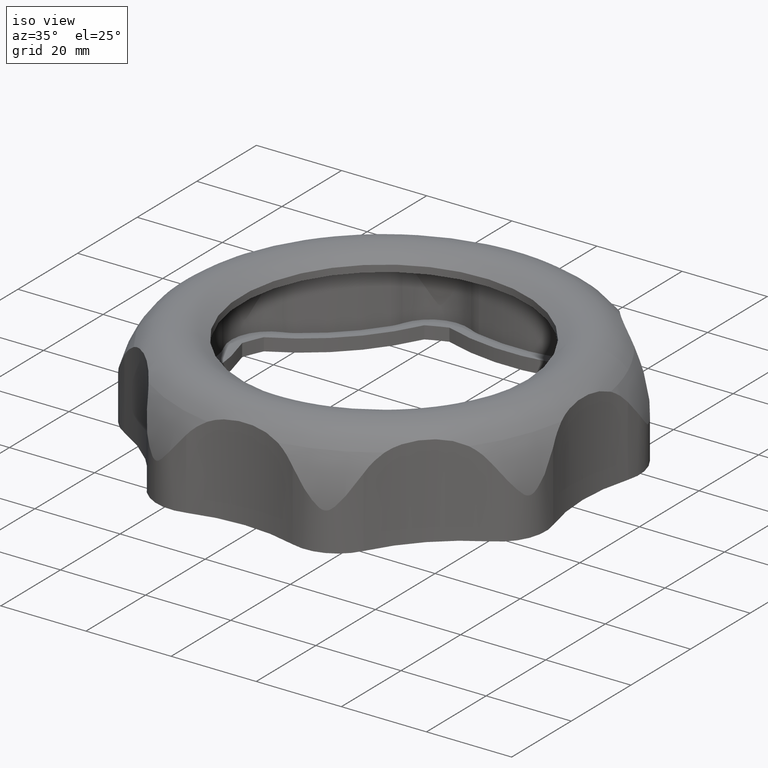
[diagram: clean part render]
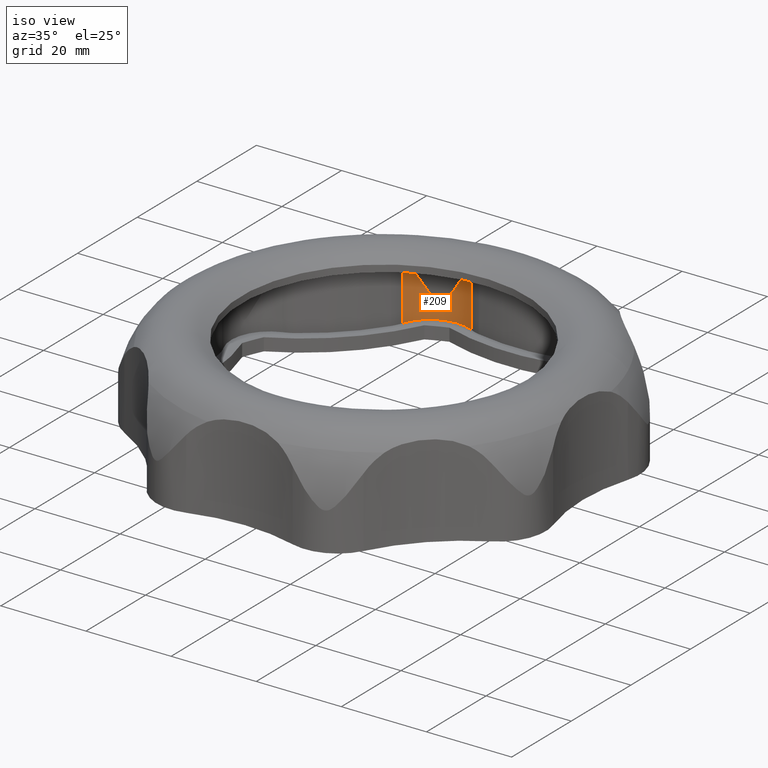
[diagram: same view with one face highlighted and labeled with its STEP entity id]
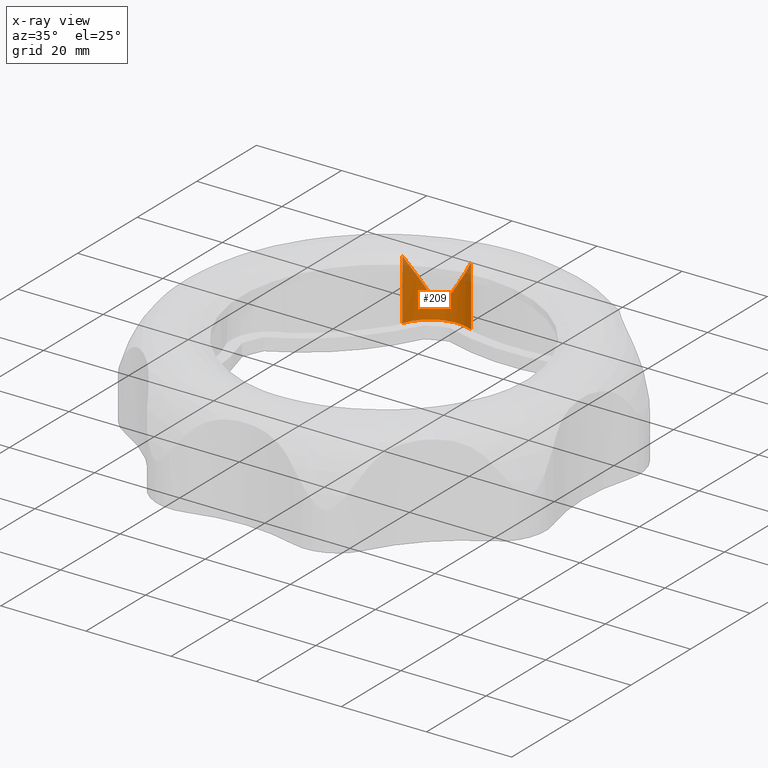
[diagram: x-ray of the same camera — body ghosted, the highlighted face saturated]
A machine part, iso view. The second image highlights one B-rep face of the part: STEP entity #209.
The next image is the same camera in x-ray: the body ghosted, the highlighted face saturated — about 8% of this face is hidden behind the body in this view.
In plain terms, the highlighted cylindrical surface (partial cylindrical patch) has radius 9 mm, axis along (0, 0, -1).
Its self-contained STEP definition (entity closure, byte-faithful):
#209 = ADVANCED_FACE( '', ( #2616 ), #2617, .F. );
#2616 = FACE_OUTER_BOUND( '', #7192, .T. );
#2617 = CYLINDRICAL_SURFACE( '', #7193, 8.99999999999999 );
#7192 = EDGE_LOOP( '', ( #14519, #14520, #14521, #14522 ) );
#7193 = AXIS2_PLACEMENT_3D( '', #14523, #14524, #14525 );
#14519 = ORIENTED_EDGE( '', *, *, #33779, .T. );
#14520 = ORIENTED_EDGE( '', *, *, #33780, .F. );
#14521 = ORIENTED_EDGE( '', *, *, #33775, .F. );
#14522 = ORIENTED_EDGE( '', *, *, #33499, .F. );
#14523 = CARTESIAN_POINT( '', ( -15.6900207269687, 37.8790608329628, -143.634815507692 ) );
#14524 = DIRECTION( '', ( 0.000000000000000, 0.000000000000000, -1.00000000000000 ) );
#14525 = DIRECTION( '', ( 0.544644097383825, 0.838667280382965, 0.000000000000000 ) );
#33499 = EDGE_CURVE( '', #42054, #42056, #42057, .T. );
#33775 = EDGE_CURVE( '', #42056, #42485, #42486, .T. );
#33779 = EDGE_CURVE( '', #42054, #42489, #42491, .T. );
#33780 = EDGE_CURVE( '', #42485, #42489, #42492, .T. );
#42054 = VERTEX_POINT( '', #59326 );
#42056 = VERTEX_POINT( '', #59328 );
#42057 = CIRCLE( '', #59329, 9.00000000000000 );
#42485 = VERTEX_POINT( '', #60614 );
#42486 = LINE( '', #60615, #60616 );
#42489 = VERTEX_POINT( '', #60623 );
#42491 = LINE( '', #60628, #60629 );
#42492 = B_SPLINE_CURVE_WITH_KNOTS( '', 3, ( #60630, #60631, #60632, #60633, #60634, #60635, #60636, #60637, #60638, #60639, #60640, #60641, #60642, #60643, #60644, #60645, #60646, #60647, #60648, #60649, #60650, #60651, #60652, #60653, #60654, #60655, #60656, #60657, #60658, #60659, #60660, #60661, #60662, #60663, #60664, #60665, #60666, #60667 ), .UNSPECIFIED., .F., .F., ( 4, 2, 2, 2, 2, 2, 2, 2, 2, 2, 2, 2, 2, 2, 2, 2, 2, 2, 4 ), ( 4.64340517301158E-007, 0.00339881057600530, 0.00679715681149330, 0.00849632992923730, 0.0101955030469813, 0.0118946761647253, 0.0127442627235973, 0.0131690560030333, 0.0133814526427513, 0.0135938492824693, 0.0138062459221873, 0.0140186425619053, 0.0144434358413413, 0.0152930224002133, 0.0169921955179572, 0.0186913686357012, 0.0203905417534452, 0.0237888879889331, 0.0271872342244210 ), .UNSPECIFIED. );
#59326 = CARTESIAN_POINT( '', ( -11.7055520137055, 45.9490056328377, 2.99965792321470 ) );
#59328 = CARTESIAN_POINT( '', ( -24.2143418504691, 40.7662652565255, 2.99965792321470 ) );
#59329 = AXIS2_PLACEMENT_3D( '', #77817, #77818, #77819 );
#60614 = CARTESIAN_POINT( '', ( -24.2143418504691, 40.7662652565255, 17.2811162320915 ) );
#60615 = CARTESIAN_POINT( '', ( -24.2143418504695, 40.7662652565259, -143.634815507692 ) );
#60616 = VECTOR( '', #78067, 1000.00000000000 );
#60623 = CARTESIAN_POINT( '', ( -11.7055520136950, 45.9490056328323, 17.2785555398980 ) );
#60628 = CARTESIAN_POINT( '', ( -11.7055520137055, 45.9490056328377, -143.634815507692 ) );
#60629 = VECTOR( '', #78069, 1000.00000000000 );
#60630 = CARTESIAN_POINT( '', ( -24.2143418504693, 40.7662652565256, 17.2811162320915 ) );
#60631 = CARTESIAN_POINT( '', ( -24.0062834579059, 41.3805468557695, 16.3355412327471 ) );
#60632 = CARTESIAN_POINT( '', ( -23.7387659215951, 41.9534584484976, 15.3897321129957 ) );
#60633 = CARTESIAN_POINT( '', ( -23.1052937048378, 43.0168367916030, 13.4903706846326 ) );
#60634 = CARTESIAN_POINT( '', ( -22.7393060974470, 43.5072370251355, 12.5367952613487 ) );
#60635 = CARTESIAN_POINT( '', ( -22.1243148513523, 44.1792240841863, 11.0968503219577 ) );
#60636 = CARTESIAN_POINT( '', ( -21.9082656194480, 44.3925942520627, 10.6152777503227 ) );
#60637 = CARTESIAN_POINT( '', ( -21.4538842599454, 44.7979165416620, 9.64892752179267 ) );
#60638 = CARTESIAN_POINT( '', ( -21.2156039886474, 44.9898081549590, 9.16389235773827 ) );
#60639 = CARTESIAN_POINT( '', ( -20.7167327185548, 45.3508052352201, 8.19906277226046 ) );
#60640 = CARTESIAN_POINT( '', ( -20.4574136607277, 45.5196325544497, 7.71680583860547 ) );
#60641 = CARTESIAN_POINT( '', ( -20.0332552173508, 45.7634065296941, 7.01085689869345 ) );
#60642 = CARTESIAN_POINT( '', ( -19.8868816636637, 45.8427809327705, 6.77693549190136 ) );
#60643 = CARTESIAN_POINT( '', ( -19.6378484497122, 45.9675264574831, 6.45044670071388 ) );
#60644 = CARTESIAN_POINT( '', ( -19.5508737089931, 46.0096586833591, 6.34548147758015 ) );
#60645 = CARTESIAN_POINT( '', ( -19.3966275617676, 46.0805404287822, 6.21314252241434 ) );
#60646 = CARTESIAN_POINT( '', ( -19.3408836408834, 46.1055865417232, 6.17347852527597 ) );
#60647 = CARTESIAN_POINT( '', ( -19.2175051844324, 46.1592407015071, 6.12033209200379 ) );
#60648 = CARTESIAN_POINT( '', ( -19.1495732677129, 46.1878837098350, 6.10920261909881 ) );
#60649 = CARTESIAN_POINT( '', ( -19.0180510932571, 46.2414322228538, 6.12909402176544 ) );
#60650 = CARTESIAN_POINT( '', ( -18.9549901506203, 46.2661771474373, 6.15845701653878 ) );
#60651 = CARTESIAN_POINT( '', ( -18.8406291731276, 46.3098029016598, 6.23316204896555 ) );
#60652 = CARTESIAN_POINT( '', ( -18.7877313907678, 46.3293237612374, 6.27883140056286 ) );
#60653 = CARTESIAN_POINT( '', ( -18.6395766124244, 46.3826565273100, 6.42260049121823 ) );
#60654 = CARTESIAN_POINT( '', ( -18.5515021546760, 46.4125220779695, 6.52954627489715 ) );
#60655 = CARTESIAN_POINT( '', ( -18.2956729420601, 46.4954825762719, 6.85974516079794 ) );
#60656 = CARTESIAN_POINT( '', ( -18.1379543372955, 46.5412427986917, 7.09292050464662 ) );
#60657 = CARTESIAN_POINT( '', ( -17.6722029415035, 46.6639373341009, 7.79511704729476 ) );
#60658 = CARTESIAN_POINT( '', ( -17.3722931937956, 46.7257007626228, 8.27279459842755 ) );
#60659 = CARTESIAN_POINT( '', ( -16.7693411646553, 46.8193150849676, 9.23013998526047 ) );
#60660 = CARTESIAN_POINT( '', ( -16.4675256453040, 46.8504853786479, 9.71131127529089 ) );
#60661 = CARTESIAN_POINT( '', ( -15.8651388161334, 46.8824105391446, 10.6687386647955 ) );
#60662 = CARTESIAN_POINT( '', ( -15.5641943362260, 46.8832140434406, 11.1459302284255 ) );
#60663 = CARTESIAN_POINT( '', ( -14.6621773856332, 46.8404205143467, 12.5730126272342 ) );
#60664 = CARTESIAN_POINT( '', ( -14.0618420050489, 46.7518248354124, 13.5183839566073 ) );
#60665 = CARTESIAN_POINT( '', ( -12.8720343449078, 46.4485333805702, 15.4019972201567 ) );
#60666 = CARTESIAN_POINT( '', ( -12.2825813653556, 46.2339091179677, 16.3402592180463 ) );
#60667 = CARTESIAN_POINT( '', ( -11.7055520136950, 45.9490056328324, 17.2785555398980 ) );
#77817 = CARTESIAN_POINT( '', ( -15.6900207269687, 37.8790608329628, 2.99965792321470 ) );
#77818 = DIRECTION( '', ( -3.31376091451462E-017, -8.00012654228308E-017, 1.00000000000000 ) );
#77819 = DIRECTION( '', ( 0.923879532511287, 0.382683432365090, 6.12303176911189E-017 ) );
#78067 = DIRECTION( '', ( 0.000000000000000, 0.000000000000000, 1.00000000000000 ) );
#78069 = DIRECTION( '', ( 0.000000000000000, 0.000000000000000, 1.00000000000000 ) );